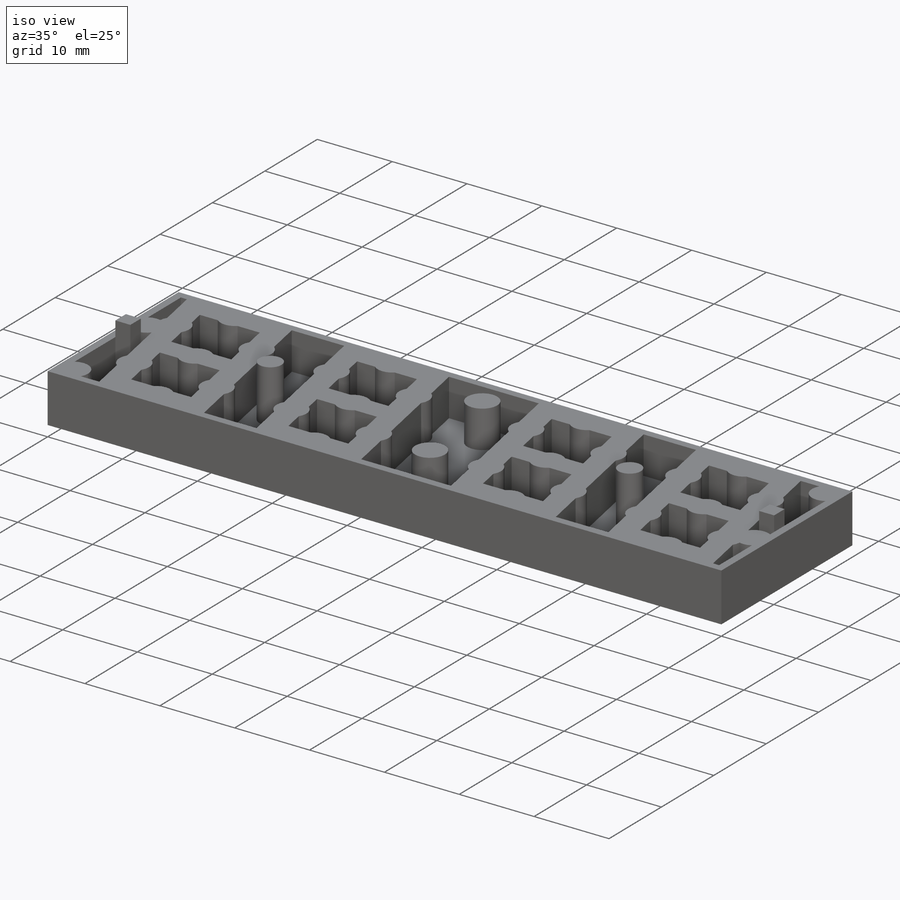
[diagram: iso view]
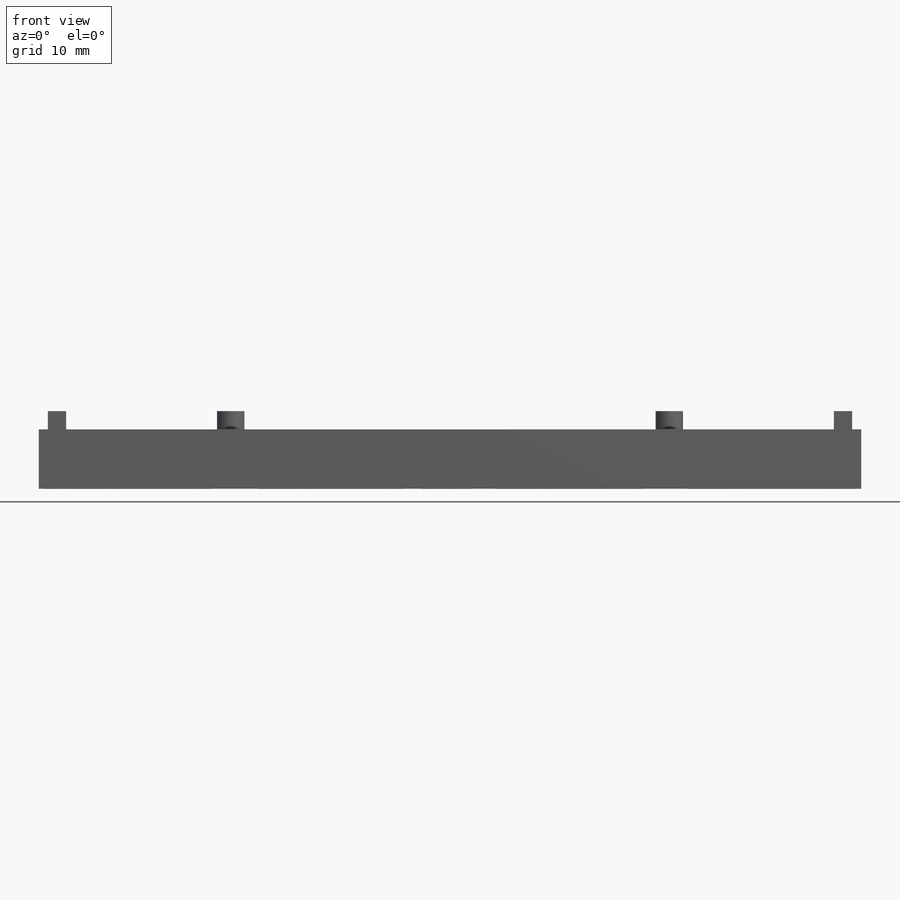
[diagram: front view]
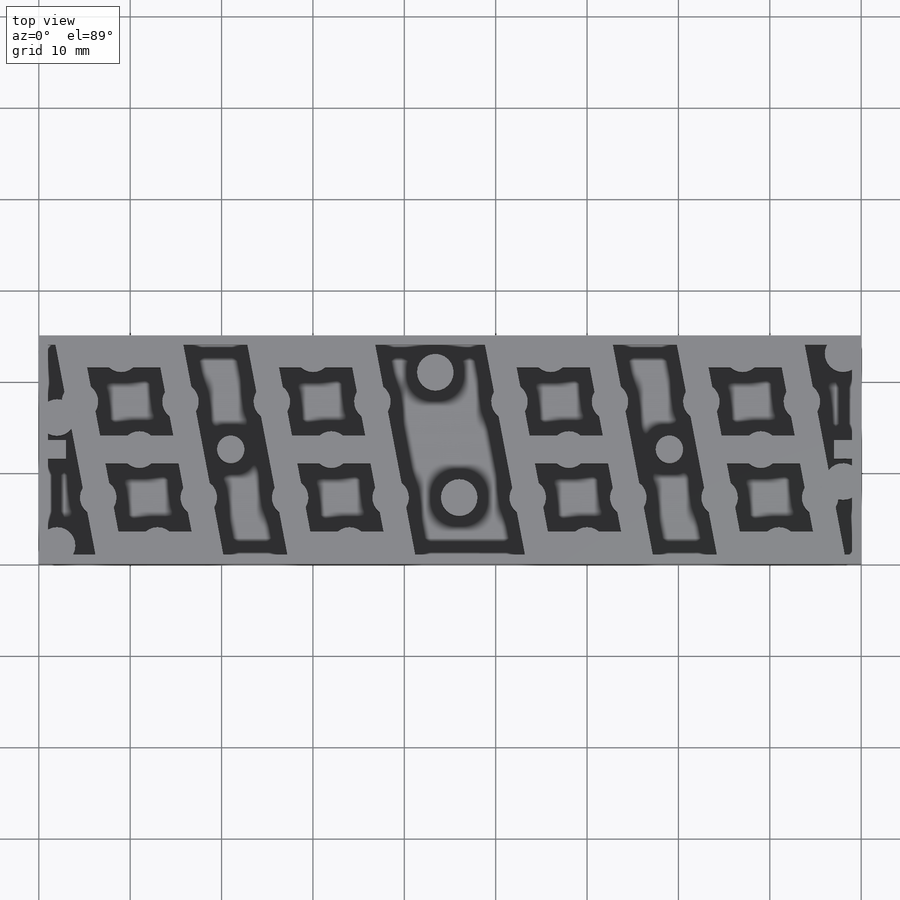
[diagram: top view]
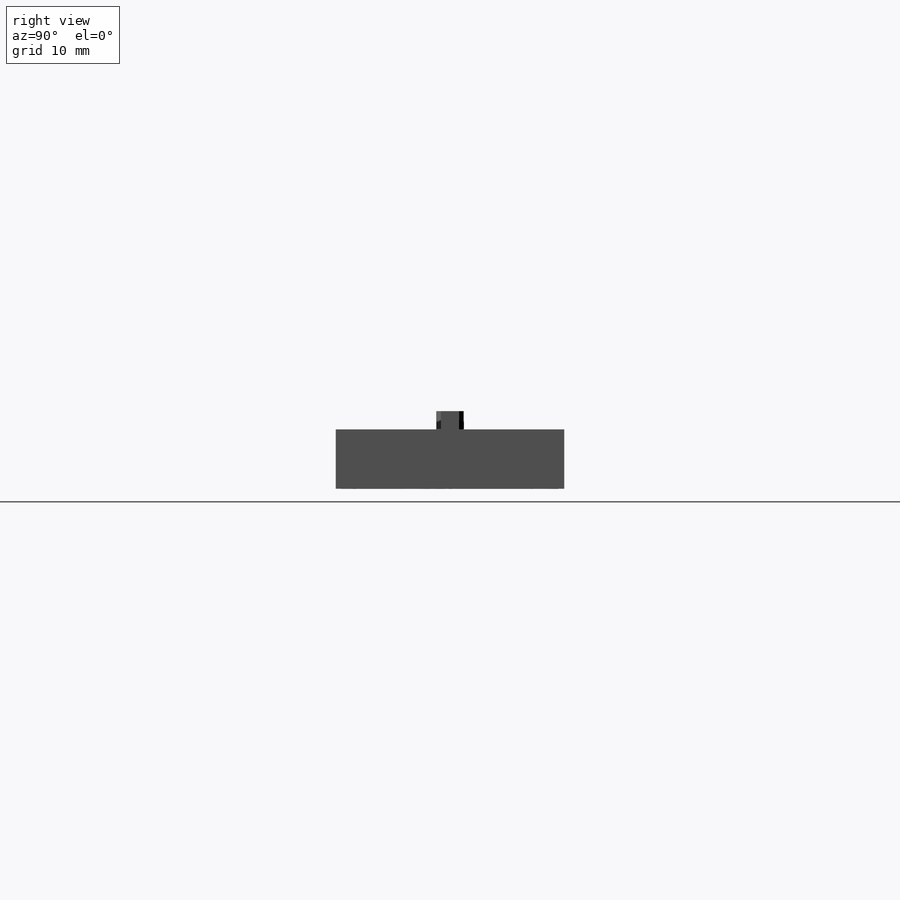
[diagram: right view]
SOLIDWORKS PART (.sldprt)
format: sldprt  version: not decoded by parser v0  size: 734,720 bytes
history: native  units: mm
features: sketch x6, extrude x6, plane x3, material x1 + 4 further entries (+8 scaffold rows collapsed)
feature tree (28):
  scaffold x8  (default folders/planes/origin — collapsed)
  material  "Материал <не указан>"
  plane  "Спереди"
  plane  "Сверху"
  plane  "Сбоку"
  "Начало координат"
  "PTricksFreeParameters"
  "PTricksEqu"
  "PTricksFreeParameters"
  sketch  "Эскиз1"  dims[D1=90.0mm D2=25.0mm]
  extrude  "Бобышка-Вытянуть1"  Depth=1.5mm
  sketch  "Эскиз3"  dims[D1=1.5mm]
  extrude  "Бобышка-Вытянуть2"  Depth=5mm
  sketch  "Эскиз5"  dims[D1=44.0mm]
  extrude  "Бобышка-Вытянуть3"  Depth=5mm
  sketch  "Эскиз6"  dims[D1=46.0mm]
  extrude  "Бобышка-Вытянуть7"  Depth=5mm
  sketch  "Эскиз7"  dims[D1=0.3mm]
  extrude  "Бобышка-Вытянуть8"  Depth=0.01mm
  sketch  "Эскиз9"  dims[c1.D1=2.0mm c1.D2=2.0mm c2.D1=21.0mm]
  extrude  "Бобышка-Вытянуть9"  Depth=7mm
decode coverage: 12 of 12 modeling features carry decoded parameters; 4 rows unclassified (native names shown)
note: suppression state not decoded; provenance and decode notes live in map.json
